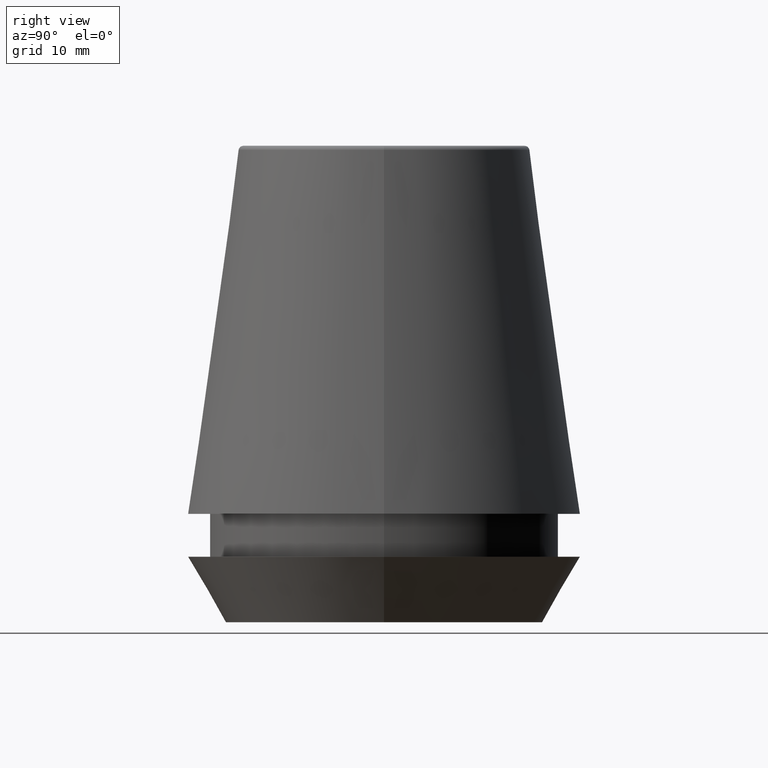
[diagram: clean part render]
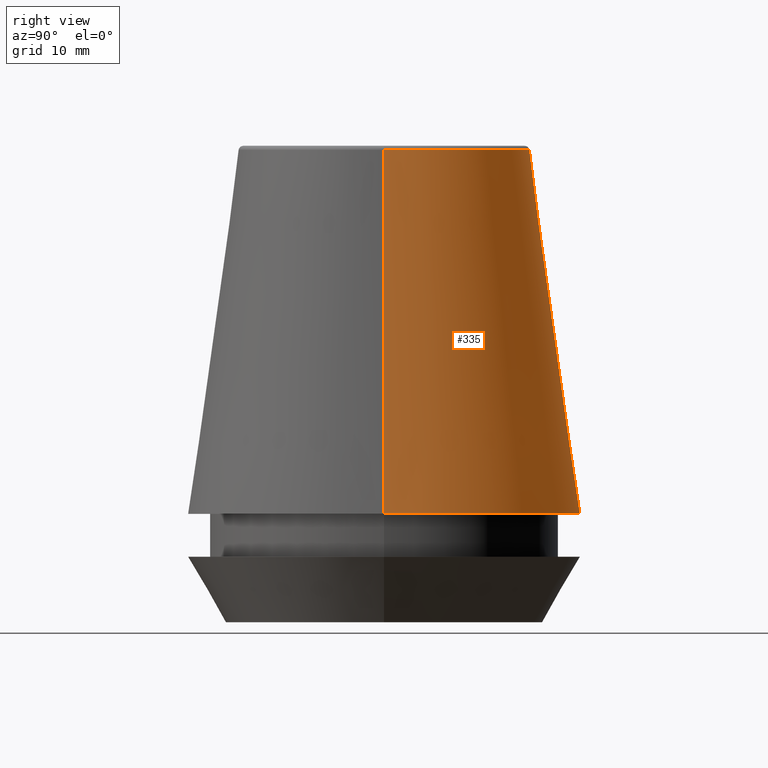
[diagram: same view with one face highlighted and labeled with its STEP entity id]
A machine part, right view. The second image highlights one B-rep face of the part: STEP entity #335.
In plain terms, the highlighted conical surface has half-angle 8 deg.
Its self-contained STEP definition (entity closure, byte-faithful):
#24 = AXIS2_PLACEMENT_3D ( 'NONE', #119, #301, #228 ) ;
#29 = DIRECTION ( 'NONE',  ( 0.1391731009600586900, 1.704378926181473100E-017, -0.9902680687415712500 ) ) ;
#39 = EDGE_CURVE ( 'NONE', #289, #341, #310, .T. ) ;
#46 = EDGE_CURVE ( 'NONE', #247, #341, #344, .T. ) ;
#66 = EDGE_CURVE ( 'NONE', #234, #247, #328, .T. ) ;
#100 = ORIENTED_EDGE ( 'NONE', *, *, #39, .T. ) ;
#102 = CARTESIAN_POINT ( 'NONE',  ( 16.50032537154048700, 2.020707065114692300E-015, 9.099999999999997900 ) ) ;
#103 = FACE_OUTER_BOUND ( 'NONE', #320, .T. ) ;
#112 = CARTESIAN_POINT ( 'NONE',  ( 16.50032537154048700, 2.020707065114692300E-015, 9.099999999999997900 ) ) ;
#119 = CARTESIAN_POINT ( 'NONE',  ( 0.0000000000000000000, 0.0000000000000000000, 9.099999999999997900 ) ) ;
#121 = CARTESIAN_POINT ( 'NONE',  ( 0.0000000000000000000, 0.0000000000000000000, 9.099999999999997900 ) ) ;
#140 = VECTOR ( 'NONE', #338, 1000.000000000000000 ) ;
#153 = DIRECTION ( 'NONE',  ( 1.000000000000000000, 0.0000000000000000000, 0.0000000000000000000 ) ) ;
#155 = DIRECTION ( 'NONE',  ( 1.000000000000000000, 0.0000000000000000000, 0.0000000000000000000 ) ) ;
#161 = ORIENTED_EDGE ( 'NONE', *, *, #369, .T. ) ;
#178 = DIRECTION ( 'NONE',  ( -0.0000000000000000000, -0.0000000000000000000, 1.000000000000000000 ) ) ;
#216 = CARTESIAN_POINT ( 'NONE',  ( -16.50032537154048700, 0.0000000000000000000, 9.099999999999997900 ) ) ;
#228 = DIRECTION ( 'NONE',  ( -1.000000000000000000, 0.0000000000000000000, 0.0000000000000000000 ) ) ;
#234 = VERTEX_POINT ( 'NONE', #339 ) ;
#236 = CARTESIAN_POINT ( 'NONE',  ( -16.50032537154048700, 0.0000000000000000000, 9.099999999999997900 ) ) ;
#247 = VERTEX_POINT ( 'NONE', #363 ) ;
#256 = ORIENTED_EDGE ( 'NONE', *, *, #46, .F. ) ;
#267 = LINE ( 'NONE', #102, #360 ) ;
#282 = ORIENTED_EDGE ( 'NONE', *, *, #66, .F. ) ;
#286 = AXIS2_PLACEMENT_3D ( 'NONE', #305, #178, #153 ) ;
#289 = VERTEX_POINT ( 'NONE', #112 ) ;
#298 = CONICAL_SURFACE ( 'NONE', #24, 16.50032537154048700, 0.1396263401595395900 ) ;
#301 = DIRECTION ( 'NONE',  ( 0.0000000000000000000, 0.0000000000000000000, -1.000000000000000000 ) ) ;
#305 = CARTESIAN_POINT ( 'NONE',  ( 0.0000000000000000000, 0.0000000000000000000, 39.65566924038402900 ) ) ;
#310 = CIRCLE ( 'NONE', #321, 16.50032537154048700 ) ;
#320 = EDGE_LOOP ( 'NONE', ( #282, #161, #100, #256 ) ) ;
#321 = AXIS2_PLACEMENT_3D ( 'NONE', #121, #337, #155 ) ;
#328 = CIRCLE ( 'NONE', #286, 12.20600611160694300 ) ;
#335 = ADVANCED_FACE ( 'NONE', ( #103 ), #298, .T. ) ;
#337 = DIRECTION ( 'NONE',  ( -0.0000000000000000000, -0.0000000000000000000, 1.000000000000000000 ) ) ;
#338 = DIRECTION ( 'NONE',  ( -0.1391731009600586900, 0.0000000000000000000, -0.9902680687415712500 ) ) ;
#339 = CARTESIAN_POINT ( 'NONE',  ( 12.20600611160694300, 1.757755848304969800E-015, 39.65566924038402900 ) ) ;
#341 = VERTEX_POINT ( 'NONE', #236 ) ;
#344 = LINE ( 'NONE', #216, #140 ) ;
#360 = VECTOR ( 'NONE', #29, 1000.000000000000000 ) ;
#363 = CARTESIAN_POINT ( 'NONE',  ( -12.20600611160694300, 0.0000000000000000000, 39.65566924038402900 ) ) ;
#369 = EDGE_CURVE ( 'NONE', #234, #289, #267, .T. ) ;